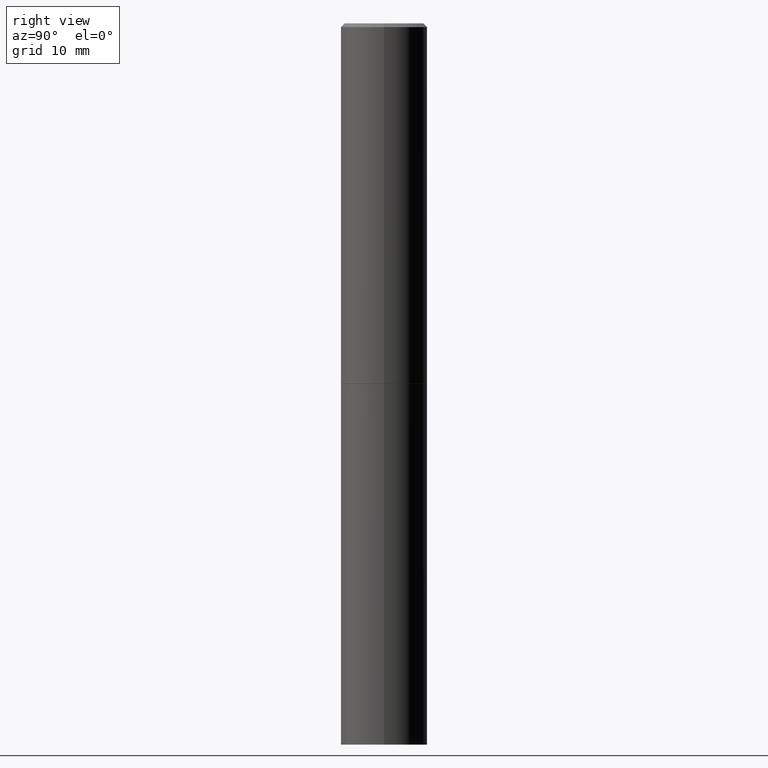
[diagram: clean part render]
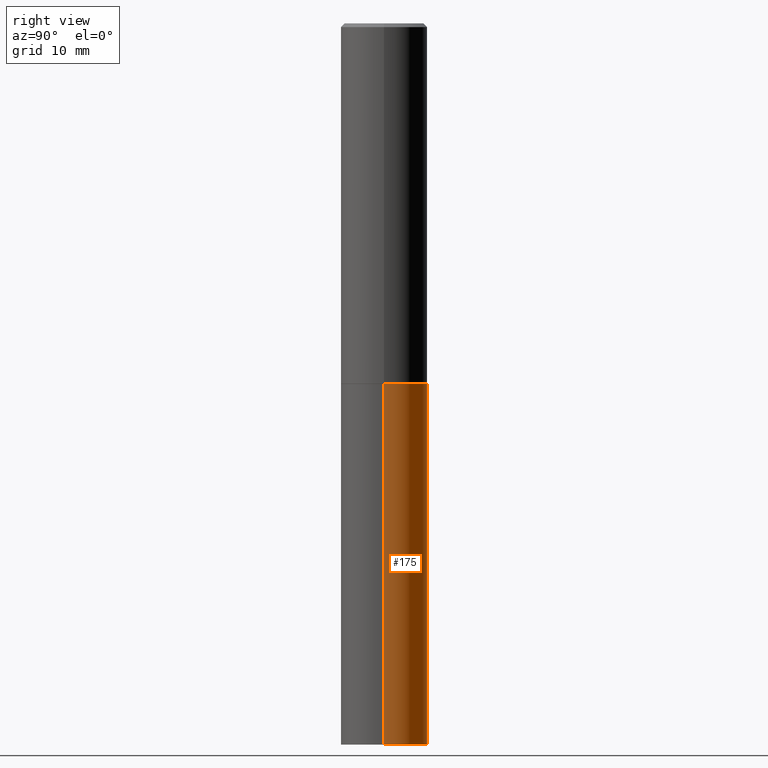
[diagram: same view with one face highlighted and labeled with its STEP entity id]
A machine part, right view. The second image highlights one B-rep face of the part: STEP entity #175.
In plain terms, the highlighted cylindrical surface (partial cylindrical patch) has radius 5.9995 mm, axis along (-0, 0, 1).
Its self-contained STEP definition (entity closure, byte-faithful):
#9 = VECTOR ( 'NONE', #206, 39.37007874015748143 ) ;
#22 = EDGE_CURVE ( 'NONE', #124, #188, #343, .T. ) ;
#42 = DIRECTION ( 'NONE',  ( -2.445468806185136597E-29, 3.491481338843145583E-15, 1.000000000000000000 ) ) ;
#46 = VERTEX_POINT ( 'NONE', #284 ) ;
#65 = ORIENTED_EDGE ( 'NONE', *, *, #139, .F. ) ;
#69 = ORIENTED_EDGE ( 'NONE', *, *, #128, .T. ) ;
#85 = DIRECTION ( 'NONE',  ( -2.445468806185136877E-29, 3.491481338843145188E-15, 1.000000000000000000 ) ) ;
#86 = AXIS2_PLACEMENT_3D ( 'NONE', #90, #42, #321 ) ;
#88 = LINE ( 'NONE', #111, #222 ) ;
#89 = DIRECTION ( 'NONE',  ( -2.445468806185136597E-29, 3.491481338843145583E-15, 1.000000000000000000 ) ) ;
#90 = CARTESIAN_POINT ( 'NONE',  ( 0.000000000000000000, 0.000000000000000000, 0.000000000000000000 ) ) ;
#101 = ORIENTED_EDGE ( 'NONE', *, *, #22, .T. ) ;
#103 = DIRECTION ( 'NONE',  ( 1.000000000000000000, -6.982962677686265133E-15, 0.000000000000000000 ) ) ;
#111 = CARTESIAN_POINT ( 'NONE',  ( -0.2361999999999999933, 1.678301941865356591E-15, -1.161852468318208757E-29 ) ) ;
#112 = AXIS2_PLACEMENT_3D ( 'NONE', #341, #89, #227 ) ;
#120 = FACE_OUTER_BOUND ( 'NONE', #127, .T. ) ;
#122 = CARTESIAN_POINT ( 'NONE',  ( -0.2361999999999999933, -8.631169581403741167E-15, -3.937000000000000277 ) ) ;
#124 = VERTEX_POINT ( 'NONE', #220 ) ;
#125 = CARTESIAN_POINT ( 'NONE',  ( 9.627810689950883669E-29, -1.374596203102546341E-14, -3.937000000000000277 ) ) ;
#127 = EDGE_LOOP ( 'NONE', ( #101, #69, #65, #353 ) ) ;
#128 = EDGE_CURVE ( 'NONE', #188, #46, #88, .T. ) ;
#139 = EDGE_CURVE ( 'NONE', #299, #46, #274, .T. ) ;
#144 = CARTESIAN_POINT ( 'NONE',  ( 0.2361999999999999933, -8.522356799982228232E-15, -1.968500000000000139 ) ) ;
#175 = ADVANCED_FACE ( 'NONE', ( #120 ), #201, .T. ) ;
#188 = VERTEX_POINT ( 'NONE', #122 ) ;
#201 = CYLINDRICAL_SURFACE ( 'NONE', #86, 0.2361999999999999933 ) ;
#206 = DIRECTION ( 'NONE',  ( -2.445468806185136877E-29, 3.491481338843145188E-15, 1.000000000000000000 ) ) ;
#220 = CARTESIAN_POINT ( 'NONE',  ( 0.2361999999999999933, -1.539533781549495994E-14, -3.937000000000000277 ) ) ;
#222 = VECTOR ( 'NONE', #85, 39.37007874015748143 ) ;
#227 = DIRECTION ( 'NONE',  ( 1.000000000000000000, -6.982962677686269077E-15, 0.000000000000000000 ) ) ;
#230 = EDGE_CURVE ( 'NONE', #124, #299, #232, .T. ) ;
#232 = LINE ( 'NONE', #355, #9 ) ;
#240 = DIRECTION ( 'NONE',  ( -2.445468806185136597E-29, 3.491481338843145583E-15, 1.000000000000000000 ) ) ;
#243 = AXIS2_PLACEMENT_3D ( 'NONE', #125, #240, #103 ) ;
#274 = CIRCLE ( 'NONE', #112, 0.2361999999999999933 ) ;
#284 = CARTESIAN_POINT ( 'NONE',  ( -0.2361999999999999933, -8.631169581403741167E-15, -1.968500000000000139 ) ) ;
#299 = VERTEX_POINT ( 'NONE', #144 ) ;
#321 = DIRECTION ( 'NONE',  ( 1.000000000000000000, -6.982962677686266711E-15, 4.876176775795936353E-29 ) ) ;
#341 = CARTESIAN_POINT ( 'NONE',  ( 4.813905344975441835E-29, -6.872981015512731707E-15, -1.968500000000000139 ) ) ;
#343 = CIRCLE ( 'NONE', #243, 0.2361999999999999933 ) ;
#353 = ORIENTED_EDGE ( 'NONE', *, *, #230, .F. ) ;
#355 = CARTESIAN_POINT ( 'NONE',  ( 0.2361999999999999933, -1.649375784469496131E-15, 1.151752954443000088E-29 ) ) ;